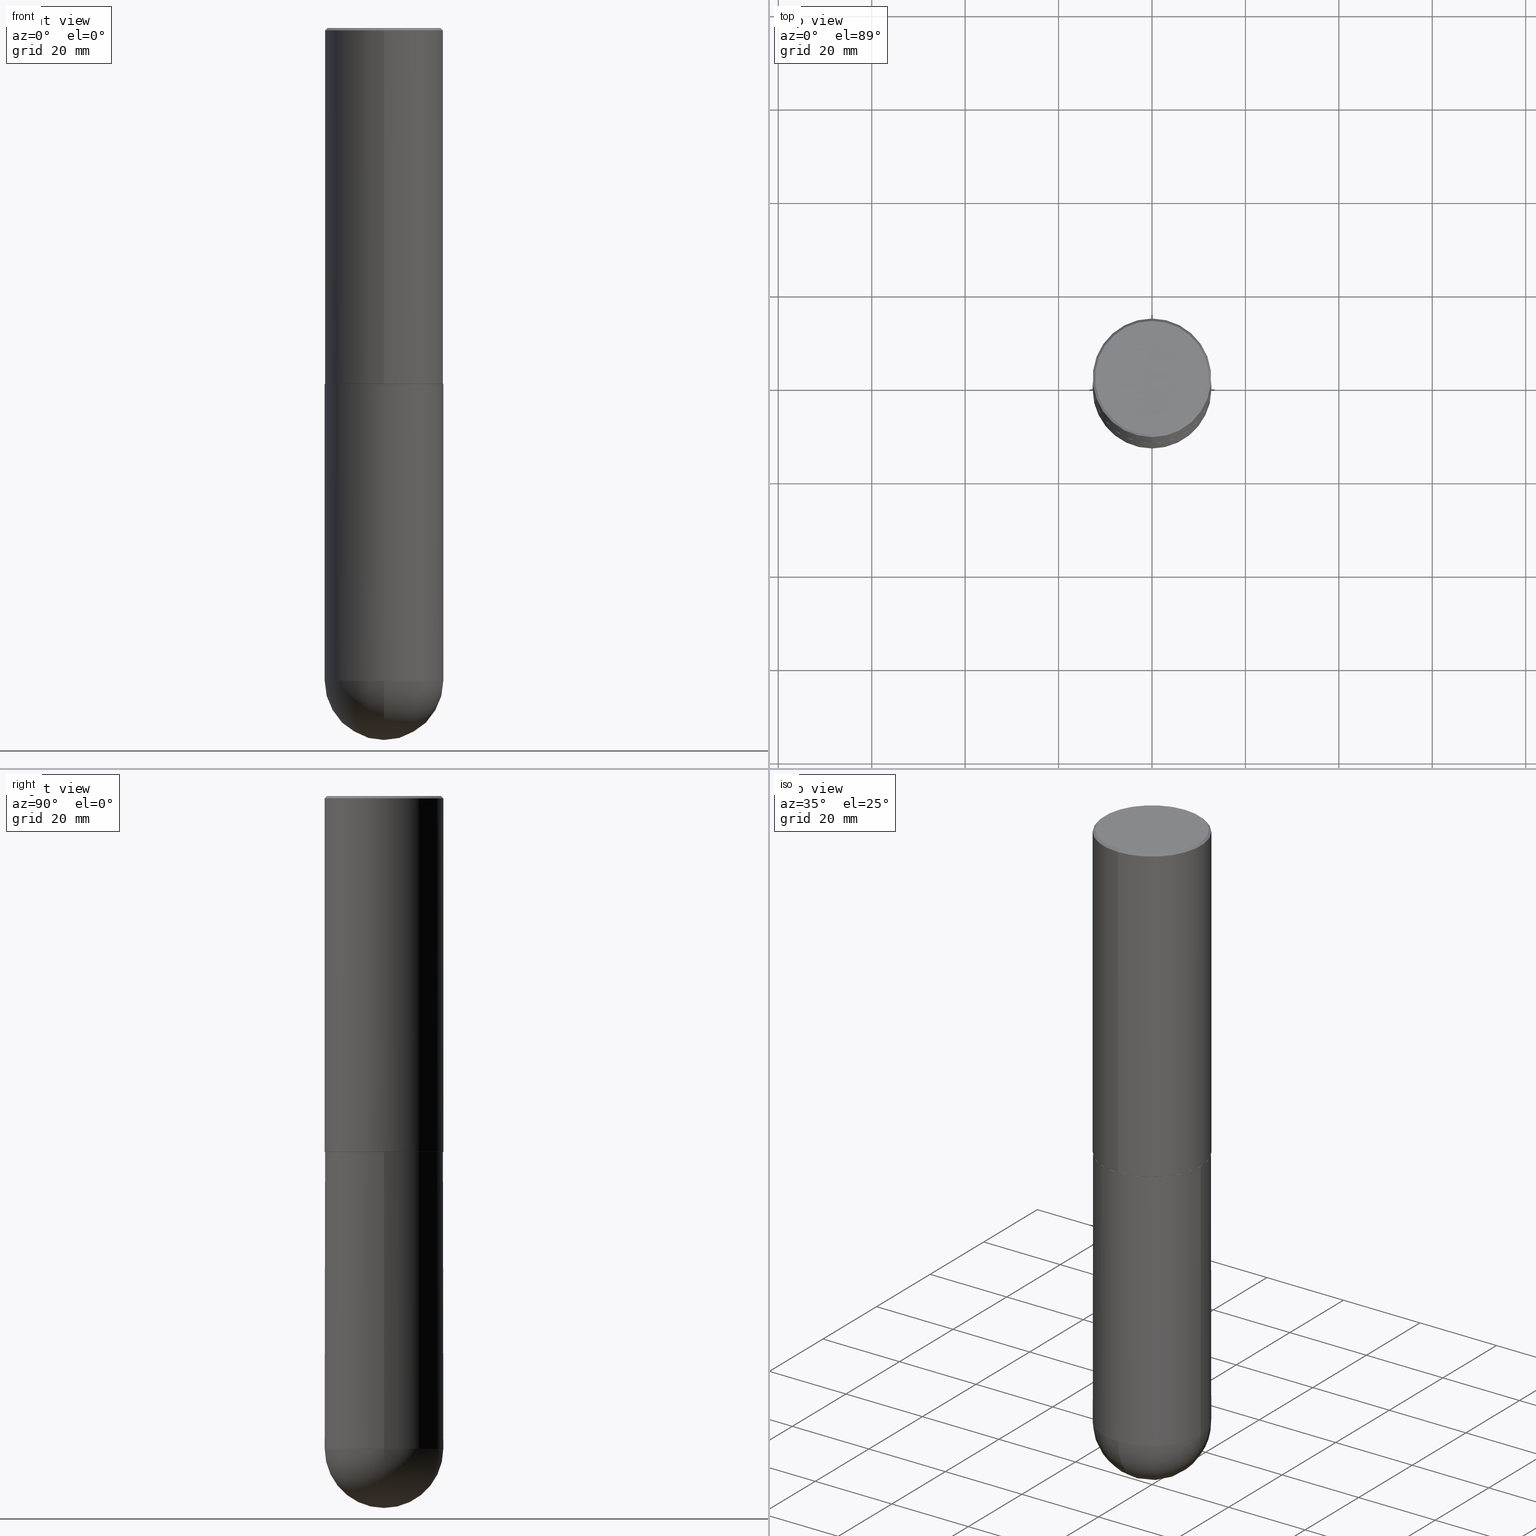
[diagram: canonical four-view strip — front | top / right | iso, engineering-drawing reading convention]
A machine part, canonical four-view strip (front | top / right | iso — engineering-drawing reading convention). The complete STEP part file that produces these views, byte-faithful:
ISO-10303-21;
HEADER;
FILE_DESCRIPTION (( 'STEP AP203' ),
    '1' );
FILE_NAME ('31917.STEP',
    '2024-02-21T17:12:16',
    ( '' ),
    ( '' ),
    'SwSTEP 2.0',
    'SolidWorks 2023',
    '' );
FILE_SCHEMA (( 'CONFIG_CONTROL_DESIGN' ));
ENDSEC;

DATA;
#1 = PRODUCT_RELATED_PRODUCT_CATEGORY ( 'detail', '', ( #398 ) ) ;
#2 = DIRECTION ( 'NONE',  ( 1.000000000000000000, -6.982962677686266711E-15, 4.876176775795935793E-29 ) ) ;
#3 = ORIENTED_EDGE ( 'NONE', *, *, #333, .F. ) ;
#4 = FACE_OUTER_BOUND ( 'NONE', #378, .T. ) ;
#5 = DIRECTION ( 'NONE',  ( -2.445468806185136877E-29, 3.491481338843145188E-15, 1.000000000000000000 ) ) ;
#6 = EDGE_CURVE ( 'NONE', #155, #311, #404, .T. ) ;
#7 = CALENDAR_DATE ( 2024, 21, 2 ) ;
#8 = CARTESIAN_POINT ( 'NONE',  ( 0.000000000000000000, 0.000000000000000000, 0.000000000000000000 ) ) ;
#9 = AXIS2_PLACEMENT_3D ( 'NONE', #292, #142, #260 ) ;
#10 = DIRECTION ( 'NONE',  ( -6.982962677686265922E-15, -1.000000000000000000, 3.284787166730577015E-15 ) ) ;
#11 = ORIENTED_EDGE ( 'NONE', *, *, #313, .F. ) ;
#12 = LINE ( 'NONE', #401, #227 ) ;
#13 = EDGE_CURVE ( 'NONE', #105, #174, #377, .T. ) ;
#14 = DIRECTION ( 'NONE',  ( 2.445032266171691881E-29, -3.492106488988713156E-15, -1.000000000000000000 ) ) ;
#15 = EDGE_CURVE ( 'NONE', #174, #105, #210, .T. ) ;
#16 = CARTESIAN_POINT ( 'NONE',  ( 1.345007843401825128E-28, -1.920314736363730603E-14, -5.500000000000000888 ) ) ;
#17 = FACE_OUTER_BOUND ( 'NONE', #402, .T. ) ;
#18 = ORIENTED_EDGE ( 'NONE', *, *, #179, .F. ) ;
#19 = DIRECTION ( 'NONE',  ( 2.445032266171691881E-29, -3.492106488988713156E-15, -1.000000000000000000 ) ) ;
#20 = CC_DESIGN_PERSON_AND_ORGANIZATION_ASSIGNMENT ( #382, #188, ( #193 ) ) ;
#21 = AXIS2_PLACEMENT_3D ( 'NONE', #381, #295, #389 ) ;
#22 = APPROVAL_PERSON_ORGANIZATION ( #112, #323, #341 ) ;
#23 = FACE_OUTER_BOUND ( 'NONE', #90, .T. ) ;
#24 = UNCERTAINTY_MEASURE_WITH_UNIT (LENGTH_MEASURE( 1.000000000000000082E-05 ), #246, 'distance_accuracy_value', 'NONE');
#25 = EDGE_CURVE ( 'NONE', #308, #328, #272, .T. ) ;
#26 = MECHANICAL_CONTEXT ( 'NONE', #180, 'mechanical' ) ;
#27 = ADVANCED_FACE ( 'NONE', ( #69 ), #264, .T. ) ;
#28 = CARTESIAN_POINT ( 'NONE',  ( 3.491481338843133355E-15, 0.4999999999999999445, -0.02000000000000185310 ) ) ;
#29 = AXIS2_PLACEMENT_3D ( 'NONE', #194, #305, #298 ) ;
#30 = CIRCLE ( 'NONE', #96, 0.5000000000000004441 ) ;
#31 = ORIENTED_EDGE ( 'NONE', *, *, #15, .F. ) ;
#32 = PERSON_AND_ORGANIZATION ( #238, #251 ) ;
#33 = AXIS2_PLACEMENT_3D ( 'NONE', #8, #348, #318 ) ;
#34 = DIRECTION ( 'NONE',  ( -6.982962677686265922E-15, -1.000000000000000000, 3.491643216902136408E-15 ) ) ;
#35 = EDGE_CURVE ( 'NONE', #375, #202, #53, .T. ) ;
#36 = LINE ( 'NONE', #293, #77 ) ;
#37 = DIRECTION ( 'NONE',  ( 2.445032266171691320E-29, -3.492106488988713156E-15, -1.000000000000000000 ) ) ;
#38 = EDGE_LOOP ( 'NONE', ( #372, #126, #304, #259, #370 ) ) ;
#39 = DIRECTION ( 'NONE',  ( -2.445032266171691881E-29, 3.492106488988713156E-15, 1.000000000000000000 ) ) ;
#40 = AXIS2_PLACEMENT_3D ( 'NONE', #106, #117, #144 ) ;
#41 = CARTESIAN_POINT ( 'NONE',  ( -0.5000000000000000000, -1.128608201128286947E-14, -3.000000000000000444 ) ) ;
#42 = FACE_OUTER_BOUND ( 'NONE', #233, .T. ) ;
#43 = CC_DESIGN_PERSON_AND_ORGANIZATION_ASSIGNMENT ( #55, #68, ( #193 ) ) ;
#44 = ORIENTED_EDGE ( 'NONE', *, *, #13, .T. ) ;
#45 = CARTESIAN_POINT ( 'NONE',  ( 4.890064532343409545E-31, -6.984212977977462847E-17, -0.02000000000000010797 ) ) ;
#46 = AXIS2_PLACEMENT_3D ( 'NONE', #189, #326, #384 ) ;
#47 = VERTEX_POINT ( 'NONE', #124 ) ;
#48 = DIRECTION ( 'NONE',  ( -2.445032266171691881E-29, 3.492106488988713156E-15, 1.000000000000000000 ) ) ;
#49 = ORIENTED_EDGE ( 'NONE', *, *, #410, .T. ) ;
#50 = ORIENTED_EDGE ( 'NONE', *, *, #327, .F. ) ;
#51 = CARTESIAN_POINT ( 'NONE',  ( 7.336406418555409790E-29, -1.047444401652943635E-14, -3.000000000000000444 ) ) ;
#52 = LENGTH_MEASURE_WITH_UNIT ( LENGTH_MEASURE( 0.02539999999999999897 ), #54 );
#53 = CIRCLE ( 'NONE', #186, 0.5000000000000004441 ) ;
#54 =( LENGTH_UNIT ( ) NAMED_UNIT ( * ) SI_UNIT ( $, .METRE. ) );
#55 = PERSON_AND_ORGANIZATION ( #238, #251 ) ;
#56 = AXIS2_PLACEMENT_3D ( 'NONE', #221, #216, #190 ) ;
#57 = CC_DESIGN_APPROVAL ( #323, ( #193 ) ) ;
#58 = COORDINATED_UNIVERSAL_TIME_OFFSET ( 5, 0, .BEHIND. ) ;
#59 = ORIENTED_EDGE ( 'NONE', *, *, #107, .T. ) ;
#60 = LINE ( 'NONE', #287, #91 ) ;
#61 = ORIENTED_EDGE ( 'NONE', *, *, #218, .F. ) ;
#62 = LINE ( 'NONE', #257, #373 ) ;
#63 = EDGE_CURVE ( 'NONE', #224, #143, #60, .T. ) ;
#64 = VECTOR ( 'NONE', #290, 39.37007874015748143 ) ;
#65 = AXIS2_PLACEMENT_3D ( 'NONE', #396, #302, #201 ) ;
#66 = ORIENTED_EDGE ( 'NONE', *, *, #350, .F. ) ;
#67 = DIRECTION ( 'NONE',  ( -2.445468806185136877E-29, 3.491481338843145188E-15, 1.000000000000000000 ) ) ;
#68 = PERSON_AND_ORGANIZATION_ROLE ( 'creator' ) ;
#69 = FACE_OUTER_BOUND ( 'NONE', #330, .T. ) ;
#70 = ADVANCED_FACE ( 'NONE', ( #160 ), #385, .T. ) ;
#71 = DIRECTION ( 'NONE',  ( -6.982962677686265133E-15, -1.000000000000000000, 3.278217592397113101E-15 ) ) ;
#72 = CARTESIAN_POINT ( 'NONE',  ( -3.491481338843062752E-15, -0.5000000000000108802, -2.998999999999998778 ) ) ;
#73 = CIRCLE ( 'NONE', #119, 0.4989999999999999991 ) ;
#74 = DIRECTION ( 'NONE',  ( -6.982962677686265922E-15, -1.000000000000000000, 3.492106488988713156E-15 ) ) ;
#75 = DIRECTION ( 'NONE',  ( 1.000000000000000000, -6.982962677686270655E-15, 0.000000000000000000 ) ) ;
#76 = CARTESIAN_POINT ( 'NONE',  ( 3.491481338843133355E-15, 0.4999999999999999445, -0.02000000000000185310 ) ) ;
#77 = VECTOR ( 'NONE', #397, 39.37007874015748143 ) ;
#78 = VECTOR ( 'NONE', #369, 39.37007874015748854 ) ;
#79 = DIRECTION ( 'NONE',  ( -2.445468806185136597E-29, 3.491481338843145583E-15, 1.000000000000000000 ) ) ;
#80 = ORIENTED_EDGE ( 'NONE', *, *, #355, .F. ) ;
#81 = DIRECTION ( 'NONE',  ( 1.000000000000000000, 0.000000000000000000, 0.000000000000000000 ) ) ;
#82 = AXIS2_PLACEMENT_3D ( 'NONE', #156, #39, #131 ) ;
#83 = AXIS2_PLACEMENT_3D ( 'NONE', #176, #114, #81 ) ;
#84 = AXIS2_PLACEMENT_3D ( 'NONE', #279, #101, #195 ) ;
#85 = DATE_AND_TIME ( #243, #301 ) ;
#86 = ORIENTED_EDGE ( 'NONE', *, *, #313, .T. ) ;
#87 = CC_DESIGN_PERSON_AND_ORGANIZATION_ASSIGNMENT ( #32, #321, ( #148 ) ) ;
#88 = ADVANCED_FACE ( 'NONE', ( #127 ), #254, .T. ) ;
#89 = DATE_AND_TIME ( #145, #405 ) ;
#90 = EDGE_LOOP ( 'NONE', ( #242, #223, #237, #281 ) ) ;
#91 = VECTOR ( 'NONE', #5, 39.37007874015748143 ) ;
#92 = CARTESIAN_POINT ( 'NONE',  ( 1.345007843401825128E-28, -1.920314736363730603E-14, -5.500000000000000888 ) ) ;
#93 = COORDINATED_UNIVERSAL_TIME_OFFSET ( 5, 0, .BEHIND. ) ;
#94 = CARTESIAN_POINT ( 'NONE',  ( -3.552713678800369978E-15, -0.5000000000000196509, -5.499999999999999112 ) ) ;
#95 = AXIS2_PLACEMENT_3D ( 'NONE', #344, #383, #2 ) ;
#96 = AXIS2_PLACEMENT_3D ( 'NONE', #334, #48, #276 ) ;
#97 = CARTESIAN_POINT ( 'NONE',  ( 1.436307221642642309E-28, -2.139245423122024710E-14, -6.000000000000001776 ) ) ;
#98 = DIRECTION ( 'NONE',  ( 6.982962677686265922E-15, 1.000000000000000000, -3.492106488988713156E-15 ) ) ;
#99 = VERTEX_POINT ( 'NONE', #97 ) ;
#100 = CC_DESIGN_PERSON_AND_ORGANIZATION_ASSIGNMENT ( #173, #149, ( #398 ) ) ;
#101 = DIRECTION ( 'NONE',  ( -2.445032266171691881E-29, 3.492106488988713156E-15, 1.000000000000000000 ) ) ;
#102 = EDGE_LOOP ( 'NONE', ( #157, #49, #386, #50 ) ) ;
#103 = FACE_OUTER_BOUND ( 'NONE', #400, .T. ) ;
#104 = CC_DESIGN_SECURITY_CLASSIFICATION ( #148, ( #193 ) ) ;
#105 = VERTEX_POINT ( 'NONE', #267 ) ;
#106 = CARTESIAN_POINT ( 'NONE',  ( 7.335096798515078164E-29, -1.047631946696614184E-14, -3.000000000000000888 ) ) ;
#107 = EDGE_CURVE ( 'NONE', #99, #253, #192, .T. ) ;
#108 = CARTESIAN_POINT ( 'NONE',  ( 1.311895865610436840E-28, -1.967732973177735475E-14, -5.500000000000000888 ) ) ;
#109 = ORIENTED_EDGE ( 'NONE', *, *, #387, .F. ) ;
#110 = CARTESIAN_POINT ( 'NONE',  ( 0.000000000000000000, 0.000000000000000000, 0.000000000000000000 ) ) ;
#111 = ORIENTED_EDGE ( 'NONE', *, *, #6, .T. ) ;
#112 = PERSON_AND_ORGANIZATION ( #238, #251 ) ;
#113 = ORIENTED_EDGE ( 'NONE', *, *, #15, .T. ) ;
#114 = DIRECTION ( 'NONE',  ( 0.000000000000000000, 0.000000000000000000, 1.000000000000000000 ) ) ;
#115 = CLOSED_SHELL ( 'NONE', ( #70, #269, #289, #324, #391, #368, #380, #130 ) ) ;
#116 = LOCAL_TIME ( 12, 12, 16.00000000000000000, #252 ) ;
#117 = DIRECTION ( 'NONE',  ( -2.445032266171691881E-29, 3.492106488988713156E-15, 1.000000000000000000 ) ) ;
#118 = PERSON_AND_ORGANIZATION ( #238, #251 ) ;
#119 = AXIS2_PLACEMENT_3D ( 'NONE', #329, #297, #10 ) ;
#120 = CARTESIAN_POINT ( 'NONE',  ( -3.430248998885764992E-15, -0.5000000000000001110, -0.01999999999999835937 ) ) ;
#121 = APPROVAL ( #248, 'UNSPECIFIED' ) ;
#122 = SHAPE_DEFINITION_REPRESENTATION ( #337, #407 ) ;
#123 = ORIENTED_EDGE ( 'NONE', *, *, #6, .F. ) ;
#124 = CARTESIAN_POINT ( 'NONE',  ( 3.549160965121774973E-15, 0.4989999999999895630, -3.000000000000002220 ) ) ;
#125 = ORIENTED_EDGE ( 'NONE', *, *, #137, .F. ) ;
#126 = ORIENTED_EDGE ( 'NONE', *, *, #137, .T. ) ;
#127 = FACE_OUTER_BOUND ( 'NONE', #38, .T. ) ;
#128 = AXIS2_PLACEMENT_3D ( 'NONE', #164, #226, #352 ) ;
#129 = PLANE ( 'NONE',  #250 ) ;
#130 = ADVANCED_FACE ( 'NONE', ( #163 ), #129, .F. ) ;
#131 = DIRECTION ( 'NONE',  ( -6.982962677686265922E-15, -1.000000000000000000, 3.491643216902136408E-15 ) ) ;
#132 = ORIENTED_EDGE ( 'NONE', *, *, #179, .T. ) ;
#133 = DIRECTION ( 'NONE',  ( -2.445032266171692161E-29, 3.492106488988713156E-15, 1.000000000000000000 ) ) ;
#134 = DIRECTION ( 'NONE',  ( -1.000000000000000000, 6.982962677686265922E-15, -4.876176775795935793E-29 ) ) ;
#135 = CIRCLE ( 'NONE', #65, 0.5000000000000000000 ) ;
#136 = EDGE_LOOP ( 'NONE', ( #271, #245 ) ) ;
#137 = EDGE_CURVE ( 'NONE', #311, #253, #284, .T. ) ;
#138 = CARTESIAN_POINT ( 'NONE',  ( 3.491481338843206325E-15, 0.4999999999999895639, -3.000000000000001332 ) ) ;
#139 = CARTESIAN_POINT ( 'NONE',  ( 4.890064532343409545E-31, -6.984212977977462847E-17, -0.02000000000000010797 ) ) ;
#140 = MANIFOLD_SOLID_BREP ( 'Body-Move/Copy2[2]', #115 ) ;
#141 = FACE_OUTER_BOUND ( 'NONE', #357, .T. ) ;
#142 = DIRECTION ( 'NONE',  ( -2.445032266171691881E-29, 3.492106488988713156E-15, 1.000000000000000000 ) ) ;
#143 = VERTEX_POINT ( 'NONE', #346 ) ;
#144 = DIRECTION ( 'NONE',  ( -6.982962677686265922E-15, -1.000000000000000000, 3.284787166730577015E-15 ) ) ;
#145 = CALENDAR_DATE ( 2024, 21, 2 ) ;
#146 = CARTESIAN_POINT ( 'NONE',  ( 0.000000000000000000, 0.000000000000000000, 0.000000000000000000 ) ) ;
#147 = AXIS2_PLACEMENT_3D ( 'NONE', #199, #79, #75 ) ;
#148 = SECURITY_CLASSIFICATION ( '', '', #249 ) ;
#149 = PERSON_AND_ORGANIZATION_ROLE ( 'design_owner' ) ;
#150 = CARTESIAN_POINT ( 'NONE',  ( -3.361644018908053211E-15, -0.4800000000000010369, 5.624294268682506588E-16 ) ) ;
#151 = EDGE_CURVE ( 'NONE', #311, #360, #62, .T. ) ;
#152 = AXIS2_PLACEMENT_3D ( 'NONE', #110, #235, #225 ) ;
#153 = VECTOR ( 'NONE', #133, 39.37007874015748143 ) ;
#154 = CARTESIAN_POINT ( 'NONE',  ( 7.332651766248905611E-29, -1.047282736047715268E-14, -2.999000000000000554 ) ) ;
#155 = VERTEX_POINT ( 'NONE', #351 ) ;
#156 = CARTESIAN_POINT ( 'NONE',  ( 4.890064532343409545E-31, -6.984212977977462847E-17, -0.02000000000000010797 ) ) ;
#157 = ORIENTED_EDGE ( 'NONE', *, *, #387, .T. ) ;
#158 = ORIENTED_EDGE ( 'NONE', *, *, #309, .T. ) ;
#159 = ORIENTED_EDGE ( 'NONE', *, *, #410, .F. ) ;
#160 = FACE_OUTER_BOUND ( 'NONE', #102, .T. ) ;
#161 = DIRECTION ( 'NONE',  ( -2.445032266171691881E-29, 3.492106488988713156E-15, 1.000000000000000000 ) ) ;
#162 = CONICAL_SURFACE ( 'NONE', #211, 0.5000000000000000000, 0.7853981633974477239 ) ;
#163 = FACE_OUTER_BOUND ( 'NONE', #394, .T. ) ;
#164 = CARTESIAN_POINT ( 'NONE',  ( 1.345007843401825128E-28, -1.920314736363730603E-14, -5.500000000000000888 ) ) ;
#165 = FACE_OUTER_BOUND ( 'NONE', #338, .T. ) ;
#166 = PLANE ( 'NONE',  #314 ) ;
#167 = CONICAL_SURFACE ( 'NONE', #336, 0.5000000000000000000, 0.7853981633974477239 ) ;
#168 = CARTESIAN_POINT ( 'NONE',  ( -3.491481338843134539E-15, -0.5000000000000002220, 1.746053244494357170E-15 ) ) ;
#169 = LOCAL_TIME ( 12, 12, 16.00000000000000000, #93 ) ;
#170 = DIRECTION ( 'NONE',  ( 6.982962677686265922E-15, 1.000000000000000000, -3.491643216902136408E-15 ) ) ;
#171 = DIRECTION ( 'NONE',  ( -2.445468806185136597E-29, 3.491481338843145583E-15, 1.000000000000000000 ) ) ;
#172 = ORIENTED_EDGE ( 'NONE', *, *, #63, .F. ) ;
#173 = PERSON_AND_ORGANIZATION ( #238, #251 ) ;
#174 = VERTEX_POINT ( 'NONE', #150 ) ;
#175 = CYLINDRICAL_SURFACE ( 'NONE', #187, 0.5000000000000002220 ) ;
#176 = CARTESIAN_POINT ( 'NONE',  ( 0.000000000000000000, 0.000000000000000000, 0.000000000000000000 ) ) ;
#177 = CC_DESIGN_APPROVAL ( #121, ( #196 ) ) ;
#178 = DATE_AND_TIME ( #340, #379 ) ;
#179 = EDGE_CURVE ( 'NONE', #328, #308, #300, .T. ) ;
#180 = APPLICATION_CONTEXT ( 'configuration controlled 3d designs of mechanical parts and assemblies' ) ;
#181 = ORIENTED_EDGE ( 'NONE', *, *, #403, .T. ) ;
#182 = LINE ( 'NONE', #120, #64 ) ;
#183 = ORIENTED_EDGE ( 'NONE', *, *, #354, .F. ) ;
#184 = DIRECTION ( 'NONE',  ( 1.000000000000000000, -6.982962677686270655E-15, 0.000000000000000000 ) ) ;
#185 = CC_DESIGN_DATE_AND_TIME_ASSIGNMENT ( #178, #408, ( #196 ) ) ;
#186 = AXIS2_PLACEMENT_3D ( 'NONE', #154, #261, #71 ) ;
#187 = AXIS2_PLACEMENT_3D ( 'NONE', #146, #312, #239 ) ;
#188 = PERSON_AND_ORGANIZATION_ROLE ( 'design_supplier' ) ;
#189 = CARTESIAN_POINT ( 'NONE',  ( 7.335096798515078164E-29, -1.047631946696614184E-14, -3.000000000000000888 ) ) ;
#190 = DIRECTION ( 'NONE',  ( 6.982962677686265922E-15, 1.000000000000000000, -4.370956789862816416E-15 ) ) ;
#191 = CARTESIAN_POINT ( 'NONE',  ( 3.552713678800539584E-15, 0.4999999999999900080, -2.999000000000001886 ) ) ;
#192 = CIRCLE ( 'NONE', #21, 0.5000000000000005551 ) ;
#193 = PRODUCT_DEFINITION_FORMATION_WITH_SPECIFIED_SOURCE ( 'ANY', '', #398, .NOT_KNOWN. ) ;
#194 = CARTESIAN_POINT ( 'NONE',  ( 1.311895865610436840E-28, -1.967732973177735475E-14, -5.500000000000000888 ) ) ;
#195 = DIRECTION ( 'NONE',  ( -6.982962677686265922E-15, -1.000000000000000000, 3.284787166730577015E-15 ) ) ;
#196 = PRODUCT_DEFINITION ( 'UNKNOWN', '', #193, #303 ) ;
#197 = FACE_OUTER_BOUND ( 'NONE', #266, .T. ) ;
#198 = AXIS2_PLACEMENT_3D ( 'NONE', #208, #161, #230 ) ;
#199 = CARTESIAN_POINT ( 'NONE',  ( 1.345007843401825128E-28, -1.920314736363730603E-14, -5.500000000000000888 ) ) ;
#200 = ORIENTED_EDGE ( 'NONE', *, *, #309, .F. ) ;
#201 = DIRECTION ( 'NONE',  ( 1.000000000000000000, -6.982962677686266711E-15, 0.000000000000000000 ) ) ;
#202 = VERTEX_POINT ( 'NONE', #191 ) ;
#203 = APPLICATION_CONTEXT ( 'configuration controlled 3d designs of mechanical parts and assemblies' ) ;
#204 = APPROVAL_DATE_TIME ( #89, #121 ) ;
#205 = APPLICATION_PROTOCOL_DEFINITION ( 'international standard', 'config_control_design', 1994, #203 ) ;
#206 = AXIS2_PLACEMENT_3D ( 'NONE', #275, #361, #74 ) ;
#207 = PERSON_AND_ORGANIZATION_ROLE ( 'creator' ) ;
#208 = CARTESIAN_POINT ( 'NONE',  ( 2.723232164255456106E-44, -3.889444259444987348E-30, -1.113781687846335001E-15 ) ) ;
#209 = APPLICATION_PROTOCOL_DEFINITION ( 'international standard', 'config_control_design', 1994, #180 ) ;
#210 = CIRCLE ( 'NONE', #9, 0.4800000000000010369 ) ;
#211 = AXIS2_PLACEMENT_3D ( 'NONE', #139, #19, #363 ) ;
#212 = DATE_AND_TIME ( #7, #116 ) ;
#213 = ORIENTED_EDGE ( 'NONE', *, *, #25, .T. ) ;
#214 = CYLINDRICAL_SURFACE ( 'NONE', #95, 0.5000000000000000000 ) ;
#215 = DATE_TIME_ROLE ( 'classification_date' ) ;
#216 = DIRECTION ( 'NONE',  ( -1.000000000000000000, 6.982962677686265922E-15, -4.883557194083112901E-29 ) ) ;
#217 = CARTESIAN_POINT ( 'NONE',  ( -3.484498376165373188E-15, -0.4990000000000104352, -2.999999999999999112 ) ) ;
#218 = EDGE_CURVE ( 'NONE', #47, #256, #73, .T. ) ;
#219 = CIRCLE ( 'NONE', #147, 0.5000000000000000000 ) ;
#220 = CC_DESIGN_APPROVAL ( #247, ( #148 ) ) ;
#221 = CARTESIAN_POINT ( 'NONE',  ( 1.311895865610436840E-28, -1.967732973177735475E-14, -5.500000000000000888 ) ) ;
#222 = DIRECTION ( 'NONE',  ( -2.445468806185136597E-29, 3.491481338843145583E-15, 1.000000000000000000 ) ) ;
#223 = ORIENTED_EDGE ( 'NONE', *, *, #333, .T. ) ;
#224 = VERTEX_POINT ( 'NONE', #316 ) ;
#225 = DIRECTION ( 'NONE',  ( -6.982962677686265922E-15, -1.000000000000000000, 3.492106488988712762E-15 ) ) ;
#226 = DIRECTION ( 'NONE',  ( -2.445468806185136597E-29, 3.491481338843145583E-15, 1.000000000000000000 ) ) ;
#227 = VECTOR ( 'NONE', #392, 39.37007874015748854 ) ;
#228 = PLANE ( 'NONE',  #206 ) ;
#229 = ADVANCED_FACE ( 'NONE', ( #4 ), #214, .T. ) ;
#230 = DIRECTION ( 'NONE',  ( -6.982962677686265922E-15, -1.000000000000000000, 3.492106488988713156E-15 ) ) ;
#231 = CARTESIAN_POINT ( 'NONE',  ( -0.5000000000000000000, -1.128608201128287263E-14, -5.500000000000000888 ) ) ;
#232 = DIRECTION ( 'NONE',  ( 1.000000000000000000, -6.982962677686265922E-15, 4.883557194083112340E-29 ) ) ;
#233 = EDGE_LOOP ( 'NONE', ( #306, #265, #18, #66 ) ) ;
#234 = EDGE_CURVE ( 'NONE', #174, #328, #182, .T. ) ;
#235 = DIRECTION ( 'NONE',  ( -2.445032266171691881E-29, 3.492106488988713156E-15, 1.000000000000000000 ) ) ;
#236 = AXIS2_PLACEMENT_3D ( 'NONE', #51, #171, #307 ) ;
#237 = ORIENTED_EDGE ( 'NONE', *, *, #350, .T. ) ;
#238 = PERSON ( 'UNSPECIFIED', 'UNSPECIFIED', 'UNSPECIFIED', ('UNSPECIFIED'), ('UNSPECIFIED'), ('UNSPECIFIED') ) ;
#239 = DIRECTION ( 'NONE',  ( -6.982962677686265922E-15, -1.000000000000000000, 3.492106488988712762E-15 ) ) ;
#240 = APPROVAL_STATUS ( 'not_yet_approved' ) ;
#241 = ORIENTED_EDGE ( 'NONE', *, *, #327, .T. ) ;
#242 = ORIENTED_EDGE ( 'NONE', *, *, #258, .F. ) ;
#243 = CALENDAR_DATE ( 2024, 21, 2 ) ;
#244 =( GEOMETRIC_REPRESENTATION_CONTEXT ( 3 ) GLOBAL_UNCERTAINTY_ASSIGNED_CONTEXT ( ( #24 ) ) GLOBAL_UNIT_ASSIGNED_CONTEXT ( ( #246, #310, #406 ) ) REPRESENTATION_CONTEXT ( 'NONE', 'WORKASPACE' ) );
#245 = ORIENTED_EDGE ( 'NONE', *, *, #362, .T. ) ;
#246 =( CONVERSION_BASED_UNIT ( 'INCH', #52 ) LENGTH_UNIT ( ) NAMED_UNIT ( #353 ) );
#247 = APPROVAL ( #291, 'UNSPECIFIED' ) ;
#248 = APPROVAL_STATUS ( 'not_yet_approved' ) ;
#249 = SECURITY_CLASSIFICATION_LEVEL ( 'unclassified' ) ;
#250 = AXIS2_PLACEMENT_3D ( 'NONE', #388, #37, #98 ) ;
#251 = ORGANIZATION ( 'UNSPECIFIED', 'UNSPECIFIED', '' ) ;
#252 = COORDINATED_UNIVERSAL_TIME_OFFSET ( 5, 0, .BEHIND. ) ;
#253 = VERTEX_POINT ( 'NONE', #94 ) ;
#254 = CYLINDRICAL_SURFACE ( 'NONE', #33, 0.5000000000000000000 ) ;
#255 = PERSON_AND_ORGANIZATION ( #238, #251 ) ;
#256 = VERTEX_POINT ( 'NONE', #217 ) ;
#257 = CARTESIAN_POINT ( 'NONE',  ( -0.5000000000000000000, 3.552713678800500929E-15, -2.459467545127452891E-29 ) ) ;
#258 = EDGE_CURVE ( 'NONE', #202, #308, #36, .T. ) ;
#259 = ORIENTED_EDGE ( 'NONE', *, *, #63, .T. ) ;
#260 = DIRECTION ( 'NONE',  ( -6.982962677686265922E-15, -1.000000000000000000, 3.492106488988713156E-15 ) ) ;
#261 = DIRECTION ( 'NONE',  ( -2.445032266171691881E-29, 3.492106488988713156E-15, 1.000000000000000000 ) ) ;
#262 = CC_DESIGN_PERSON_AND_ORGANIZATION_ASSIGNMENT ( #343, #207, ( #196 ) ) ;
#263 = APPROVAL_ROLE ( '' ) ;
#264 = SPHERICAL_SURFACE ( 'NONE', #56, 0.5000000000000005551 ) ;
#265 = ORIENTED_EDGE ( 'NONE', *, *, #258, .T. ) ;
#266 = EDGE_LOOP ( 'NONE', ( #268, #158, #11, #80 ) ) ;
#267 = CARTESIAN_POINT ( 'NONE',  ( 3.421651712066274001E-15, 0.4800000000000010369, -2.789992802560921055E-15 ) ) ;
#268 = ORIENTED_EDGE ( 'NONE', *, *, #107, .F. ) ;
#269 = ADVANCED_FACE ( 'NONE', ( #42 ), #364, .T. ) ;
#270 = DIRECTION ( 'NONE',  ( 6.982962677686265922E-15, 1.000000000000000000, 0.000000000000000000 ) ) ;
#271 = ORIENTED_EDGE ( 'NONE', *, *, #354, .T. ) ;
#272 = CIRCLE ( 'NONE', #82, 0.5000000000000000000 ) ;
#273 = AXIS2_PLACEMENT_3D ( 'NONE', #356, #322, #34 ) ;
#274 = AXIS2_PLACEMENT_3D ( 'NONE', #16, #359, #339 ) ;
#275 = CARTESIAN_POINT ( 'NONE',  ( 7.335096798515077043E-29, -1.047631946696613868E-14, -3.000000000000000444 ) ) ;
#276 = DIRECTION ( 'NONE',  ( -6.982962677686265133E-15, -1.000000000000000000, 3.278217592397113101E-15 ) ) ;
#277 = CARTESIAN_POINT ( 'NONE',  ( -3.430248998885764992E-15, -0.5000000000000001110, -0.01999999999999835937 ) ) ;
#278 = CLOSED_SHELL ( 'NONE', ( #229, #27, #317, #347, #88 ) ) ;
#279 = CARTESIAN_POINT ( 'NONE',  ( 7.335096798515078164E-29, -1.047631946696614184E-14, -3.000000000000000888 ) ) ;
#280 = APPROVAL_ROLE ( '' ) ;
#281 = ORIENTED_EDGE ( 'NONE', *, *, #25, .F. ) ;
#282 = COORDINATED_UNIVERSAL_TIME_OFFSET ( 5, 0, .BEHIND. ) ;
#283 = DIRECTION ( 'NONE',  ( 4.937700262164544887E-15, 0.7071067811865446862, -0.7071067811865503483 ) ) ;
#284 = CIRCLE ( 'NONE', #296, 0.5000000000000000000 ) ;
#285 = CALENDAR_DATE ( 2024, 21, 2 ) ;
#286 = MANIFOLD_SOLID_BREP ( 'Body-Move/Copy2[1]', #278 ) ;
#287 = CARTESIAN_POINT ( 'NONE',  ( 0.5000000000000000000, -3.491481338843133355E-15, 2.438088387897967896E-29 ) ) ;
#288 = CIRCLE ( 'NONE', #236, 0.5000000000000000000 ) ;
#289 = ADVANCED_FACE ( 'NONE', ( #165 ), #167, .T. ) ;
#290 = DIRECTION ( 'NONE',  ( -4.851104656540961119E-15, -0.7071067811865495711, -0.7071067811865454633 ) ) ;
#291 = APPROVAL_STATUS ( 'not_yet_approved' ) ;
#292 = CARTESIAN_POINT ( 'NONE',  ( 2.723232164255456106E-44, -3.889444259444987348E-30, -1.113781687846335001E-15 ) ) ;
#293 = CARTESIAN_POINT ( 'NONE',  ( 3.552713678800501718E-15, 0.5000000000000002220, -1.746053244494357170E-15 ) ) ;
#294 = DATE_AND_TIME ( #285, #169 ) ;
#295 = DIRECTION ( 'NONE',  ( -1.000000000000000000, 7.105427357601001070E-15, -4.926315508542082329E-29 ) ) ;
#296 = AXIS2_PLACEMENT_3D ( 'NONE', #92, #222, #184 ) ;
#297 = DIRECTION ( 'NONE',  ( -2.445032266171691881E-29, 3.492106488988713156E-15, 1.000000000000000000 ) ) ;
#298 = DIRECTION ( 'NONE',  ( 6.982962677686265922E-15, 1.000000000000000000, -4.370956789862816416E-15 ) ) ;
#299 = DIRECTION ( 'NONE',  ( 2.438088387897960049E-29, -3.491481338843145188E-15, -1.000000000000000000 ) ) ;
#300 = CIRCLE ( 'NONE', #273, 0.5000000000000000000 ) ;
#301 = LOCAL_TIME ( 12, 12, 16.00000000000000000, #282 ) ;
#302 = DIRECTION ( 'NONE',  ( -2.445468806185136597E-29, 3.491481338843145583E-15, 1.000000000000000000 ) ) ;
#303 = DESIGN_CONTEXT ( 'detailed design', #203, 'design' ) ;
#304 = ORIENTED_EDGE ( 'NONE', *, *, #355, .T. ) ;
#305 = DIRECTION ( 'NONE',  ( -1.000000000000000000, 6.982962677686265922E-15, -4.883557194083112901E-29 ) ) ;
#306 = ORIENTED_EDGE ( 'NONE', *, *, #35, .T. ) ;
#307 = DIRECTION ( 'NONE',  ( 1.000000000000000000, -6.982962677686266711E-15, 0.000000000000000000 ) ) ;
#308 = VERTEX_POINT ( 'NONE', #76 ) ;
#309 = EDGE_CURVE ( 'NONE', #99, #155, #411, .T. ) ;
#310 =( NAMED_UNIT ( * ) PLANE_ANGLE_UNIT ( ) SI_UNIT ( $, .RADIAN. ) );
#311 = VERTEX_POINT ( 'NONE', #231 ) ;
#312 = DIRECTION ( 'NONE',  ( -2.445032266171691881E-29, 3.492106488988713156E-15, 1.000000000000000000 ) ) ;
#313 = EDGE_CURVE ( 'NONE', #224, #155, #219, .T. ) ;
#314 = AXIS2_PLACEMENT_3D ( 'NONE', #138, #299, #134 ) ;
#315 = ORIENTED_EDGE ( 'NONE', *, *, #234, .F. ) ;
#316 = CARTESIAN_POINT ( 'NONE',  ( 0.5000000000000000000, -1.833027702892651007E-14, -5.500000000000000888 ) ) ;
#317 = ADVANCED_FACE ( 'NONE', ( #197 ), #332, .T. ) ;
#318 = DIRECTION ( 'NONE',  ( 1.000000000000000000, -6.982962677686266711E-15, 4.876176775795935793E-29 ) ) ;
#319 = APPROVAL_PERSON_ORGANIZATION ( #255, #247, #263 ) ;
#320 = VECTOR ( 'NONE', #283, 39.37007874015748143 ) ;
#321 = PERSON_AND_ORGANIZATION_ROLE ( 'classification_officer' ) ;
#322 = DIRECTION ( 'NONE',  ( -2.445032266171691881E-29, 3.492106488988713156E-15, 1.000000000000000000 ) ) ;
#323 = APPROVAL ( #240, 'UNSPECIFIED' ) ;
#324 = ADVANCED_FACE ( 'NONE', ( #17 ), #162, .T. ) ;
#325 = APPROVAL_DATE_TIME ( #294, #247 ) ;
#326 = DIRECTION ( 'NONE',  ( -2.445032266171691881E-29, 3.492106488988713156E-15, 1.000000000000000000 ) ) ;
#327 = EDGE_CURVE ( 'NONE', #256, #375, #12, .T. ) ;
#328 = VERTEX_POINT ( 'NONE', #277 ) ;
#329 = CARTESIAN_POINT ( 'NONE',  ( 7.335096798515078164E-29, -1.047631946696614184E-14, -3.000000000000000888 ) ) ;
#330 = EDGE_LOOP ( 'NONE', ( #200, #59, #125, #123 ) ) ;
#331 = FACE_OUTER_BOUND ( 'NONE', #136, .T. ) ;
#332 = SPHERICAL_SURFACE ( 'NONE', #29, 0.5000000000000005551 ) ;
#333 = EDGE_CURVE ( 'NONE', #202, #375, #30, .T. ) ;
#334 = CARTESIAN_POINT ( 'NONE',  ( 7.332651766248905611E-29, -1.047282736047715268E-14, -2.999000000000000554 ) ) ;
#335 = ORIENTED_EDGE ( 'NONE', *, *, #218, .T. ) ;
#336 = AXIS2_PLACEMENT_3D ( 'NONE', #45, #14, #170 ) ;
#337 = PRODUCT_DEFINITION_SHAPE ( 'NONE', 'NONE',  #196 ) ;
#338 = EDGE_LOOP ( 'NONE', ( #31, #358, #132, #345 ) ) ;
#339 = DIRECTION ( 'NONE',  ( 1.000000000000000000, -6.982962677686270655E-15, 0.000000000000000000 ) ) ;
#340 = CALENDAR_DATE ( 2024, 21, 2 ) ;
#341 = APPROVAL_ROLE ( '' ) ;
#342 = APPROVAL_DATE_TIME ( #85, #323 ) ;
#343 = PERSON_AND_ORGANIZATION ( #238, #251 ) ;
#344 = CARTESIAN_POINT ( 'NONE',  ( 0.000000000000000000, 0.000000000000000000, 0.000000000000000000 ) ) ;
#345 = ORIENTED_EDGE ( 'NONE', *, *, #403, .F. ) ;
#346 = CARTESIAN_POINT ( 'NONE',  ( 0.5000000000000000000, -1.396592535537257129E-14, -3.000000000000000444 ) ) ;
#347 = ADVANCED_FACE ( 'NONE', ( #331 ), #166, .F. ) ;
#348 = DIRECTION ( 'NONE',  ( -2.445468806185136597E-29, 3.491481338843145583E-15, 1.000000000000000000 ) ) ;
#349 = CONICAL_SURFACE ( 'NONE', #84, 0.4989999999999999991, 0.7853981633974824739 ) ;
#350 = EDGE_CURVE ( 'NONE', #375, #328, #367, .T. ) ;
#351 = CARTESIAN_POINT ( 'NONE',  ( 3.491481338843267462E-15, 0.4999999999999808487, -5.500000000000002665 ) ) ;
#352 = DIRECTION ( 'NONE',  ( 1.000000000000000000, -6.982962677686270655E-15, 0.000000000000000000 ) ) ;
#353 = DIMENSIONAL_EXPONENTS ( 1.000000000000000000, 0.000000000000000000, 0.000000000000000000, 0.000000000000000000, 0.000000000000000000, 0.000000000000000000, 0.000000000000000000 ) ;
#354 = EDGE_CURVE ( 'NONE', #143, #360, #135, .T. ) ;
#355 = EDGE_CURVE ( 'NONE', #253, #224, #395, .T. ) ;
#356 = CARTESIAN_POINT ( 'NONE',  ( 4.890064532343409545E-31, -6.984212977977462847E-17, -0.02000000000000010797 ) ) ;
#357 = EDGE_LOOP ( 'NONE', ( #159, #335, #241, #3 ) ) ;
#358 = ORIENTED_EDGE ( 'NONE', *, *, #234, .T. ) ;
#359 = DIRECTION ( 'NONE',  ( -2.445468806185136597E-29, 3.491481338843145583E-15, 1.000000000000000000 ) ) ;
#360 = VERTEX_POINT ( 'NONE', #41 ) ;
#361 = DIRECTION ( 'NONE',  ( -2.445032266171691320E-29, 3.492106488988713156E-15, 1.000000000000000000 ) ) ;
#362 = EDGE_CURVE ( 'NONE', #360, #143, #288, .T. ) ;
#363 = DIRECTION ( 'NONE',  ( 6.982962677686265922E-15, 1.000000000000000000, -3.491643216902136408E-15 ) ) ;
#364 = CYLINDRICAL_SURFACE ( 'NONE', #152, 0.5000000000000002220 ) ;
#365 = CC_DESIGN_DATE_AND_TIME_ASSIGNMENT ( #212, #215, ( #148 ) ) ;
#366 = APPROVAL_PERSON_ORGANIZATION ( #118, #121, #280 ) ;
#367 = LINE ( 'NONE', #168, #153 ) ;
#368 = ADVANCED_FACE ( 'NONE', ( #141 ), #349, .T. ) ;
#369 = DIRECTION ( 'NONE',  ( 5.024295867788231995E-15, 0.7071067811865739960, 0.7071067811865208164 ) ) ;
#370 = ORIENTED_EDGE ( 'NONE', *, *, #362, .F. ) ;
#371 = LINE ( 'NONE', #412, #78 ) ;
#372 = ORIENTED_EDGE ( 'NONE', *, *, #151, .F. ) ;
#373 = VECTOR ( 'NONE', #67, 39.37007874015748143 ) ;
#374 = CIRCLE ( 'NONE', #40, 0.4989999999999999991 ) ;
#375 = VERTEX_POINT ( 'NONE', #72 ) ;
#376 = COORDINATED_UNIVERSAL_TIME_OFFSET ( 5, 0, .BEHIND. ) ;
#377 = CIRCLE ( 'NONE', #198, 0.4800000000000010369 ) ;
#378 = EDGE_LOOP ( 'NONE', ( #111, #399, #183, #172, #86 ) ) ;
#379 = LOCAL_TIME ( 12, 12, 16.00000000000000000, #58 ) ;
#380 = ADVANCED_FACE ( 'NONE', ( #103 ), #228, .F. ) ;
#381 = CARTESIAN_POINT ( 'NONE',  ( 1.311895865610436840E-28, -1.967732973177735475E-14, -5.500000000000000888 ) ) ;
#382 = PERSON_AND_ORGANIZATION ( #238, #251 ) ;
#383 = DIRECTION ( 'NONE',  ( -2.445468806185136597E-29, 3.491481338843145583E-15, 1.000000000000000000 ) ) ;
#384 = DIRECTION ( 'NONE',  ( -6.982962677686265922E-15, -1.000000000000000000, 3.284787166730577015E-15 ) ) ;
#385 = CONICAL_SURFACE ( 'NONE', #46, 0.4989999999999999991, 0.7853981633974824739 ) ;
#386 = ORIENTED_EDGE ( 'NONE', *, *, #35, .F. ) ;
#387 = EDGE_CURVE ( 'NONE', #256, #47, #374, .T. ) ;
#388 = CARTESIAN_POINT ( 'NONE',  ( 3.351822085289415042E-15, 0.4800000000000010369, -2.233101958637753555E-15 ) ) ;
#389 = DIRECTION ( 'NONE',  ( -7.105427357601000281E-15, -1.000000000000000000, 0.000000000000000000 ) ) ;
#390 = ORIENTED_EDGE ( 'NONE', *, *, #13, .F. ) ;
#391 = ADVANCED_FACE ( 'NONE', ( #23 ), #175, .T. ) ;
#392 = DIRECTION ( 'NONE',  ( -4.937700262164715281E-15, -0.7071067811865691111, 0.7071067811865257013 ) ) ;
#393 = AXIS2_PLACEMENT_3D ( 'NONE', #108, #232, #270 ) ;
#394 = EDGE_LOOP ( 'NONE', ( #44, #113 ) ) ;
#395 = CIRCLE ( 'NONE', #274, 0.5000000000000000000 ) ;
#396 = CARTESIAN_POINT ( 'NONE',  ( 7.336406418555409790E-29, -1.047444401652943635E-14, -3.000000000000000444 ) ) ;
#397 = DIRECTION ( 'NONE',  ( -2.445032266171692161E-29, 3.492106488988713156E-15, 1.000000000000000000 ) ) ;
#398 = PRODUCT ( '31917', '31917', '', ( #26 ) ) ;
#399 = ORIENTED_EDGE ( 'NONE', *, *, #151, .T. ) ;
#400 = EDGE_LOOP ( 'NONE', ( #109, #61 ) ) ;
#401 = CARTESIAN_POINT ( 'NONE',  ( -3.484498376165373188E-15, -0.4990000000000104352, -2.999999999999999112 ) ) ;
#402 = EDGE_LOOP ( 'NONE', ( #315, #390, #181, #213 ) ) ;
#403 = EDGE_CURVE ( 'NONE', #105, #308, #409, .T. ) ;
#404 = CIRCLE ( 'NONE', #128, 0.5000000000000000000 ) ;
#405 = LOCAL_TIME ( 12, 12, 16.00000000000000000, #376 ) ;
#406 =( NAMED_UNIT ( * ) SI_UNIT ( $, .STERADIAN. ) SOLID_ANGLE_UNIT ( ) );
#407 = ADVANCED_BREP_SHAPE_REPRESENTATION ( '31917', ( #286, #140, #83 ), #244 ) ;
#408 = DATE_TIME_ROLE ( 'creation_date' ) ;
#409 = LINE ( 'NONE', #28, #320 ) ;
#410 = EDGE_CURVE ( 'NONE', #47, #202, #371, .T. ) ;
#411 = CIRCLE ( 'NONE', #393, 0.5000000000000005551 ) ;
#412 = CARTESIAN_POINT ( 'NONE',  ( 3.545608251442972496E-15, 0.4989999999999895630, -3.000000000000002220 ) ) ;
ENDSEC;
END-ISO-10303-21;
